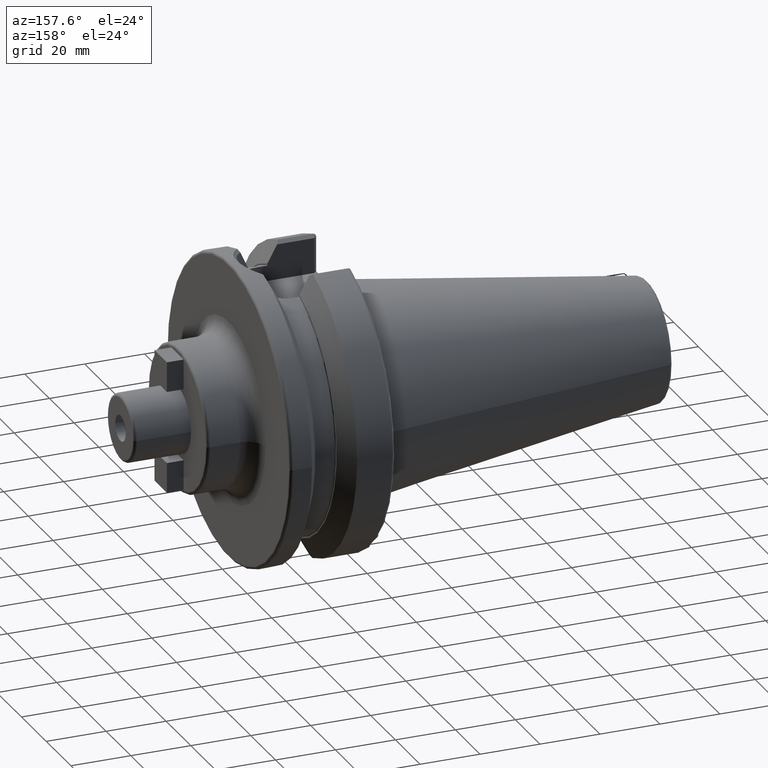
[diagram: clean part render]
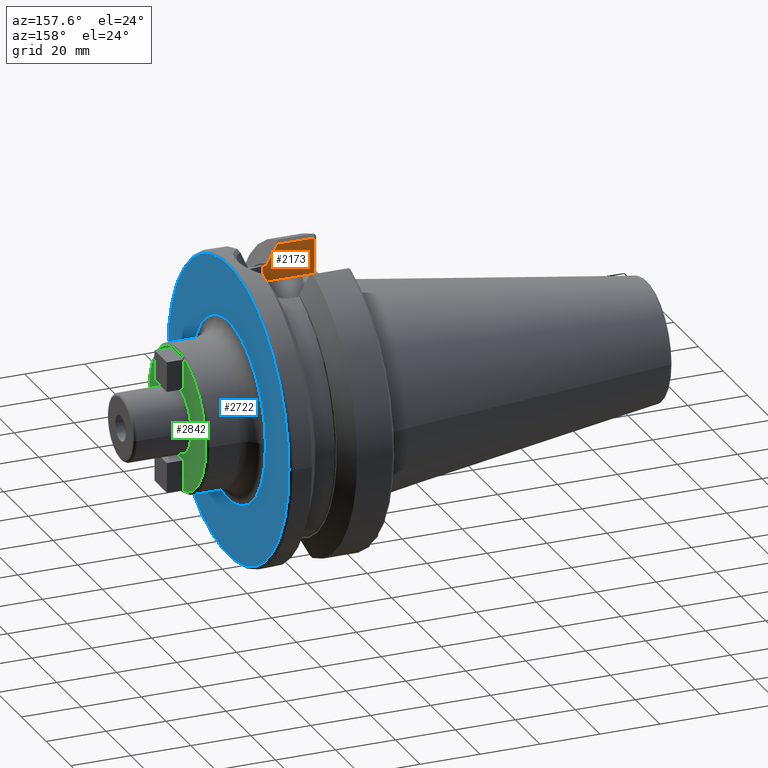
[diagram: same view with three faces highlighted in distinct colors, each labeled with its STEP entity id]
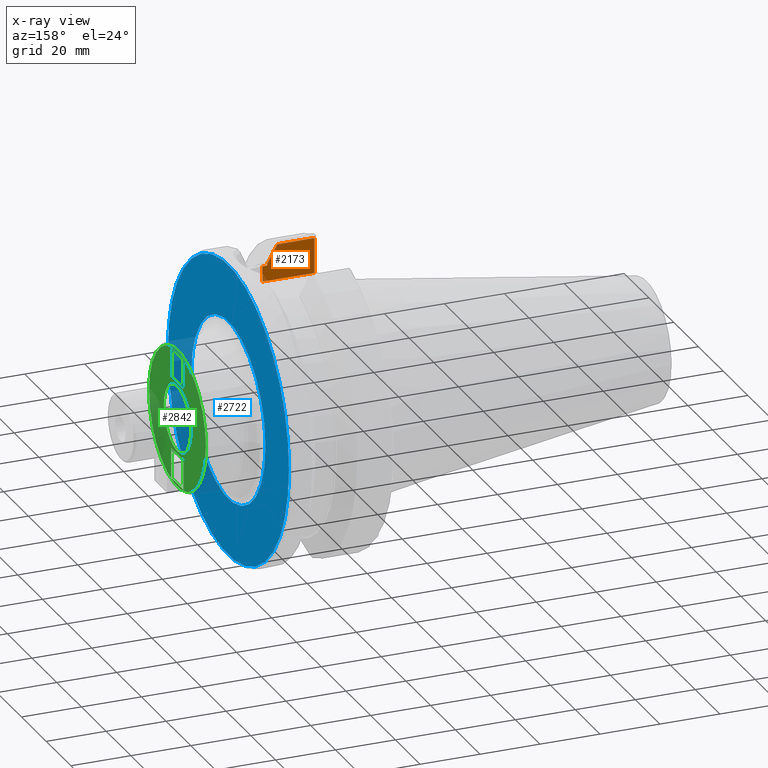
[diagram: x-ray of the same camera — body ghosted, the three highlighted faces saturated]
A machine part, auxiliary view with three faces highlighted in distinct colors.
The next image is the same camera in x-ray (body ghosted, the three faces saturated) — at least one of them is partly hidden behind the body in this view.
Their STEP definitions:

[orange] entity #2173 — the highlighted planar face has unit normal (0, -1, 0).
#468=DIRECTION('',(0.E0,0.E0,1.E0));
#469=VECTOR('',#468,5.162930007E0);
#470=CARTESIAN_POINT('',(2.13475E1,-1.29025E1,3.52E1));
#471=LINE('',#470,#469);
#529=DIRECTION('',(0.E0,0.E0,1.E0));
#530=VECTOR('',#529,4.678451531613E-1);
#531=CARTESIAN_POINT('',(1.96625E1,-1.29025E1,4.062531376802E1));
#532=LINE('',#531,#530);
#533=CARTESIAN_POINT('',(1.640508297825E1,-1.29025E1,4.697335042340E1));
#534=CARTESIAN_POINT('',(1.678800997375E1,-1.29025E1,4.628553610571E1));
#535=CARTESIAN_POINT('',(1.753988026520E1,-1.29025E1,4.493290409157E1));
#536=CARTESIAN_POINT('',(1.862508060803E1,-1.29025E1,4.297399674455E1));
#537=CARTESIAN_POINT('',(1.932130614689E1,-1.29025E1,4.171256941858E1));
#538=CARTESIAN_POINT('',(1.96625E1,-1.29025E1,4.109315892118E1));
#540=DIRECTION('',(-1.E0,0.E0,0.E0));
#541=VECTOR('',#540,1.240508297825E1);
#542=CARTESIAN_POINT('',(1.640508297825E1,-1.29025E1,4.697335042340E1));
#543=LINE('',#542,#541);
#544=DIRECTION('',(0.E0,0.E0,-1.E0));
#545=VECTOR('',#544,1.177335042340E1);
#546=CARTESIAN_POINT('',(4.E0,-1.29025E1,4.697335042340E1));
#547=LINE('',#546,#545);
#548=DIRECTION('',(1.E0,0.E0,0.E0));
#549=VECTOR('',#548,1.435E0);
#550=CARTESIAN_POINT('',(1.99125E1,-1.29025E1,4.036293000700E1));
#551=LINE('',#550,#549);
#552=CARTESIAN_POINT('',(1.96625E1,-1.29025E1,4.062531376802E1));
#553=CARTESIAN_POINT('',(1.96625E1,-1.29025E1,4.059802443585E1));
#554=CARTESIAN_POINT('',(1.967010312706E1,-1.29025E1,4.054571527488E1));
#555=CARTESIAN_POINT('',(1.970597803203E1,-1.29025E1,4.046933362101E1));
#556=CARTESIAN_POINT('',(1.976358989115E1,-1.29025E1,4.040921074747E1));
#557=CARTESIAN_POINT('',(1.983275140013E1,-1.29025E1,4.037231907874E1));
#558=CARTESIAN_POINT('',(1.988482223968E1,-1.29025E1,4.036293000700E1));
#559=CARTESIAN_POINT('',(1.99125E1,-1.29025E1,4.036293000700E1));
#675=DIRECTION('',(1.E0,0.E0,0.E0));
#676=VECTOR('',#675,1.73475E1);
#677=CARTESIAN_POINT('',(4.E0,-1.29025E1,3.52E1));
#678=LINE('',#677,#676);
#1311=CARTESIAN_POINT('',(1.96625E1,-1.29025E1,4.062531376802E1));
#1313=VERTEX_POINT('',#1311);
#1319=CARTESIAN_POINT('',(1.99125E1,-1.29025E1,4.036293000700E1));
#1321=VERTEX_POINT('',#1319);
#1354=CARTESIAN_POINT('',(1.96625E1,-1.29025E1,4.109315892118E1));
#1356=VERTEX_POINT('',#1354);
#1440=CARTESIAN_POINT('',(2.13475E1,-1.29025E1,3.52E1));
#1442=VERTEX_POINT('',#1440);
#1459=CARTESIAN_POINT('',(2.13475E1,-1.29025E1,4.036293000700E1));
#1460=VERTEX_POINT('',#1459);
#1461=VERTEX_POINT('',#533);
#1480=CARTESIAN_POINT('',(4.E0,-1.29025E1,4.697335042340E1));
#1481=CARTESIAN_POINT('',(4.E0,-1.29025E1,3.52E1));
#1482=VERTEX_POINT('',#1480);
#1483=VERTEX_POINT('',#1481);
#2155=CARTESIAN_POINT('',(2.8E0,-1.29025E1,3.52E1));
#2156=DIRECTION('',(0.E0,-1.E0,0.E0));
#2157=DIRECTION('',(1.E0,0.E0,0.E0));
#2158=AXIS2_PLACEMENT_3D('',#2155,#2156,#2157);
#2159=PLANE('',#2158);
#2160=ORIENTED_EDGE('',*,*,#1848,.T.);
#2161=ORIENTED_EDGE('',*,*,#1889,.F.);
#2163=ORIENTED_EDGE('',*,*,#2162,.T.);
#2165=ORIENTED_EDGE('',*,*,#2164,.T.);
#2167=ORIENTED_EDGE('',*,*,#2166,.T.);
#2168=ORIENTED_EDGE('',*,*,#2135,.T.);
#2169=ORIENTED_EDGE('',*,*,#2036,.F.);
#2170=ORIENTED_EDGE('',*,*,#2004,.F.);
#2171=EDGE_LOOP('',(#2160,#2161,#2163,#2165,#2167,#2168,#2169,#2170));
#2172=FACE_OUTER_BOUND('',#2171,.F.);
#2173=ADVANCED_FACE('',(#2172),#2159,.F.);
#539=B_SPLINE_CURVE_WITH_KNOTS('',3,(#533,#534,#535,#536,#537,#538),
.UNSPECIFIED.,.F.,.F.,(4,1,1,4),(0.E0,3.333333333333E-1,6.666666666667E-1,1.E0),
.UNSPECIFIED.);
#560=B_SPLINE_CURVE_WITH_KNOTS('',3,(#552,#553,#554,#555,#556,#557,#558,#559),
.UNSPECIFIED.,.F.,.F.,(4,1,1,1,1,4),(0.E0,2.E-1,4.E-1,6.E-1,8.E-1,1.E0),
.UNSPECIFIED.);
#1848=EDGE_CURVE('',#1313,#1356,#532,.T.);
#1889=EDGE_CURVE('',#1461,#1356,#539,.T.);
#2004=EDGE_CURVE('',#1313,#1321,#560,.T.);
#2036=EDGE_CURVE('',#1321,#1460,#551,.T.);
#2135=EDGE_CURVE('',#1442,#1460,#471,.T.);
#2162=EDGE_CURVE('',#1461,#1482,#543,.T.);
#2164=EDGE_CURVE('',#1482,#1483,#547,.T.);
#2166=EDGE_CURVE('',#1483,#1442,#678,.T.);

[blue] entity #2722 — the highlighted planar face has unit normal (1, 0, 0).
#814=CARTESIAN_POINT('',(3.8E1,0.E0,0.E0));
#815=DIRECTION('',(1.E0,0.E0,0.E0));
#816=DIRECTION('',(0.E0,1.E0,0.E0));
#817=AXIS2_PLACEMENT_3D('',#814,#815,#816);
#829=CARTESIAN_POINT('',(3.8E1,0.E0,0.E0));
#830=DIRECTION('',(-1.E0,0.E0,0.E0));
#831=DIRECTION('',(0.E0,1.E0,0.E0));
#832=AXIS2_PLACEMENT_3D('',#829,#830,#831);
#834=CARTESIAN_POINT('',(3.8E1,0.E0,0.E0));
#835=DIRECTION('',(1.E0,0.E0,0.E0));
#836=DIRECTION('',(0.E0,-1.E0,0.E0));
#837=AXIS2_PLACEMENT_3D('',#834,#835,#836);
#839=CARTESIAN_POINT('',(3.8E1,0.E0,0.E0));
#840=DIRECTION('',(1.E0,0.E0,0.E0));
#841=DIRECTION('',(0.E0,1.E0,0.E0));
#842=AXIS2_PLACEMENT_3D('',#839,#840,#841);
#1436=CARTESIAN_POINT('',(3.8E1,4.89875E1,0.E0));
#1437=VERTEX_POINT('',#1436);
#1438=CARTESIAN_POINT('',(3.8E1,-4.89875E1,-1.199847701465E-14));
#1439=VERTEX_POINT('',#1438);
#1571=CARTESIAN_POINT('',(3.8E1,-3.E1,0.E0));
#1572=CARTESIAN_POINT('',(3.8E1,3.E1,0.E0));
#1573=VERTEX_POINT('',#1571);
#1574=VERTEX_POINT('',#1572);
#2707=CARTESIAN_POINT('',(3.8E1,0.E0,0.E0));
#2708=DIRECTION('',(1.E0,0.E0,0.E0));
#2709=DIRECTION('',(0.E0,-1.E0,0.E0));
#2710=AXIS2_PLACEMENT_3D('',#2707,#2708,#2709);
#2711=PLANE('',#2710);
#2712=ORIENTED_EDGE('',*,*,#2702,.T.);
#2713=ORIENTED_EDGE('',*,*,#2686,.F.);
#2714=EDGE_LOOP('',(#2712,#2713));
#2715=FACE_OUTER_BOUND('',#2714,.F.);
#2717=ORIENTED_EDGE('',*,*,#2716,.T.);
#2719=ORIENTED_EDGE('',*,*,#2718,.T.);
#2720=EDGE_LOOP('',(#2717,#2719));
#2721=FACE_BOUND('',#2720,.F.);
#2722=ADVANCED_FACE('',(#2715,#2721),#2711,.T.);
#818=CIRCLE('',#817,4.89875E1);
#833=CIRCLE('',#832,4.89875E1);
#838=CIRCLE('',#837,3.E1);
#843=CIRCLE('',#842,3.E1);
#2686=EDGE_CURVE('',#1437,#1439,#818,.T.);
#2702=EDGE_CURVE('',#1437,#1439,#833,.T.);
#2716=EDGE_CURVE('',#1573,#1574,#838,.T.);
#2718=EDGE_CURVE('',#1574,#1573,#843,.T.);

[green] entity #2842 — the highlighted planar face has unit normal (1, 0, 0).
#892=CARTESIAN_POINT('',(5.5E1,0.E0,0.E0));
#893=DIRECTION('',(1.E0,0.E0,0.E0));
#894=DIRECTION('',(0.E0,1.E0,0.E0));
#895=AXIS2_PLACEMENT_3D('',#892,#893,#894);
#897=CARTESIAN_POINT('',(5.5E1,0.E0,0.E0));
#898=DIRECTION('',(-1.E0,0.E0,0.E0));
#899=DIRECTION('',(0.E0,1.E0,0.E0));
#900=AXIS2_PLACEMENT_3D('',#897,#898,#899);
#902=CARTESIAN_POINT('',(5.5E1,0.E0,0.E0));
#903=DIRECTION('',(-1.E0,0.E0,0.E0));
#904=DIRECTION('',(0.E0,1.E0,0.E0));
#905=AXIS2_PLACEMENT_3D('',#902,#903,#904);
#907=CARTESIAN_POINT('',(5.5E1,0.E0,0.E0));
#908=DIRECTION('',(-1.E0,0.E0,0.E0));
#909=DIRECTION('',(0.E0,-1.E0,0.E0));
#910=AXIS2_PLACEMENT_3D('',#907,#908,#909);
#912=DIRECTION('',(0.E0,-1.E0,0.E0));
#913=VECTOR('',#912,1.E1);
#914=CARTESIAN_POINT('',(5.5E1,5.E0,-1.2E1));
#915=LINE('',#914,#913);
#916=DIRECTION('',(0.E0,0.E0,-1.E0));
#917=VECTOR('',#916,1.E1);
#918=CARTESIAN_POINT('',(5.5E1,-5.E0,-1.2E1));
#919=LINE('',#918,#917);
#920=DIRECTION('',(0.E0,1.E0,0.E0));
#921=VECTOR('',#920,1.E1);
#922=CARTESIAN_POINT('',(5.5E1,-5.E0,-2.2E1));
#923=LINE('',#922,#921);
#924=DIRECTION('',(0.E0,0.E0,1.E0));
#925=VECTOR('',#924,1.E1);
#926=CARTESIAN_POINT('',(5.5E1,5.E0,-2.2E1));
#927=LINE('',#926,#925);
#928=DIRECTION('',(0.E0,0.E0,1.E0));
#929=VECTOR('',#928,1.E1);
#930=CARTESIAN_POINT('',(5.5E1,5.E0,1.2E1));
#931=LINE('',#930,#929);
#932=DIRECTION('',(0.E0,-1.E0,0.E0));
#933=VECTOR('',#932,1.E1);
#934=CARTESIAN_POINT('',(5.5E1,5.E0,2.2E1));
#935=LINE('',#934,#933);
#936=DIRECTION('',(0.E0,0.E0,-1.E0));
#937=VECTOR('',#936,1.E1);
#938=CARTESIAN_POINT('',(5.5E1,-5.E0,2.2E1));
#939=LINE('',#938,#937);
#940=DIRECTION('',(0.E0,1.E0,0.E0));
#941=VECTOR('',#940,1.E1);
#942=CARTESIAN_POINT('',(5.5E1,-5.E0,1.2E1));
#943=LINE('',#942,#941);
#1525=CARTESIAN_POINT('',(5.5E1,1.1E1,0.E0));
#1526=CARTESIAN_POINT('',(5.5E1,-1.1E1,0.E0));
#1527=VERTEX_POINT('',#1525);
#1528=VERTEX_POINT('',#1526);
#1545=CARTESIAN_POINT('',(5.5E1,5.E0,-1.2E1));
#1546=VERTEX_POINT('',#1545);
#1547=CARTESIAN_POINT('',(5.5E1,-5.E0,-1.2E1));
#1548=VERTEX_POINT('',#1547);
#1549=CARTESIAN_POINT('',(5.5E1,-5.E0,-2.2E1));
#1550=VERTEX_POINT('',#1549);
#1551=CARTESIAN_POINT('',(5.5E1,5.E0,-2.2E1));
#1552=VERTEX_POINT('',#1551);
#1553=CARTESIAN_POINT('',(5.5E1,5.E0,1.2E1));
#1554=VERTEX_POINT('',#1553);
#1555=CARTESIAN_POINT('',(5.5E1,5.E0,2.2E1));
#1556=VERTEX_POINT('',#1555);
#1557=CARTESIAN_POINT('',(5.5E1,-5.E0,2.2E1));
#1558=VERTEX_POINT('',#1557);
#1559=CARTESIAN_POINT('',(5.5E1,-5.E0,1.2E1));
#1560=VERTEX_POINT('',#1559);
#1583=CARTESIAN_POINT('',(5.5E1,2.3E1,0.E0));
#1584=CARTESIAN_POINT('',(5.5E1,-2.3E1,0.E0));
#1585=VERTEX_POINT('',#1583);
#1586=VERTEX_POINT('',#1584);
#2807=CARTESIAN_POINT('',(5.5E1,0.E0,0.E0));
#2808=DIRECTION('',(1.E0,0.E0,0.E0));
#2809=DIRECTION('',(0.E0,-1.E0,0.E0));
#2810=AXIS2_PLACEMENT_3D('',#2807,#2808,#2809);
#2811=PLANE('',#2810);
#2812=ORIENTED_EDGE('',*,*,#2789,.T.);
#2813=ORIENTED_EDGE('',*,*,#2774,.T.);
#2814=EDGE_LOOP('',(#2812,#2813));
#2815=FACE_OUTER_BOUND('',#2814,.F.);
#2817=ORIENTED_EDGE('',*,*,#2816,.T.);
#2819=ORIENTED_EDGE('',*,*,#2818,.F.);
#2820=EDGE_LOOP('',(#2817,#2819));
#2821=FACE_BOUND('',#2820,.F.);
#2823=ORIENTED_EDGE('',*,*,#2822,.T.);
#2825=ORIENTED_EDGE('',*,*,#2824,.T.);
#2827=ORIENTED_EDGE('',*,*,#2826,.T.);
#2829=ORIENTED_EDGE('',*,*,#2828,.T.);
#2830=EDGE_LOOP('',(#2823,#2825,#2827,#2829));
#2831=FACE_BOUND('',#2830,.F.);
#2833=ORIENTED_EDGE('',*,*,#2832,.T.);
#2835=ORIENTED_EDGE('',*,*,#2834,.T.);
#2837=ORIENTED_EDGE('',*,*,#2836,.T.);
#2839=ORIENTED_EDGE('',*,*,#2838,.T.);
#2840=EDGE_LOOP('',(#2833,#2835,#2837,#2839));
#2841=FACE_BOUND('',#2840,.F.);
#2842=ADVANCED_FACE('',(#2815,#2821,#2831,#2841),#2811,.T.);
#896=CIRCLE('',#895,1.1E1);
#901=CIRCLE('',#900,1.1E1);
#906=CIRCLE('',#905,2.3E1);
#911=CIRCLE('',#910,2.3E1);
#2774=EDGE_CURVE('',#1586,#1585,#911,.T.);
#2789=EDGE_CURVE('',#1585,#1586,#906,.T.);
#2816=EDGE_CURVE('',#1527,#1528,#896,.T.);
#2818=EDGE_CURVE('',#1527,#1528,#901,.T.);
#2822=EDGE_CURVE('',#1546,#1548,#915,.T.);
#2824=EDGE_CURVE('',#1548,#1550,#919,.T.);
#2826=EDGE_CURVE('',#1550,#1552,#923,.T.);
#2828=EDGE_CURVE('',#1552,#1546,#927,.T.);
#2832=EDGE_CURVE('',#1554,#1556,#931,.T.);
#2834=EDGE_CURVE('',#1556,#1558,#935,.T.);
#2836=EDGE_CURVE('',#1558,#1560,#939,.T.);
#2838=EDGE_CURVE('',#1560,#1554,#943,.T.);